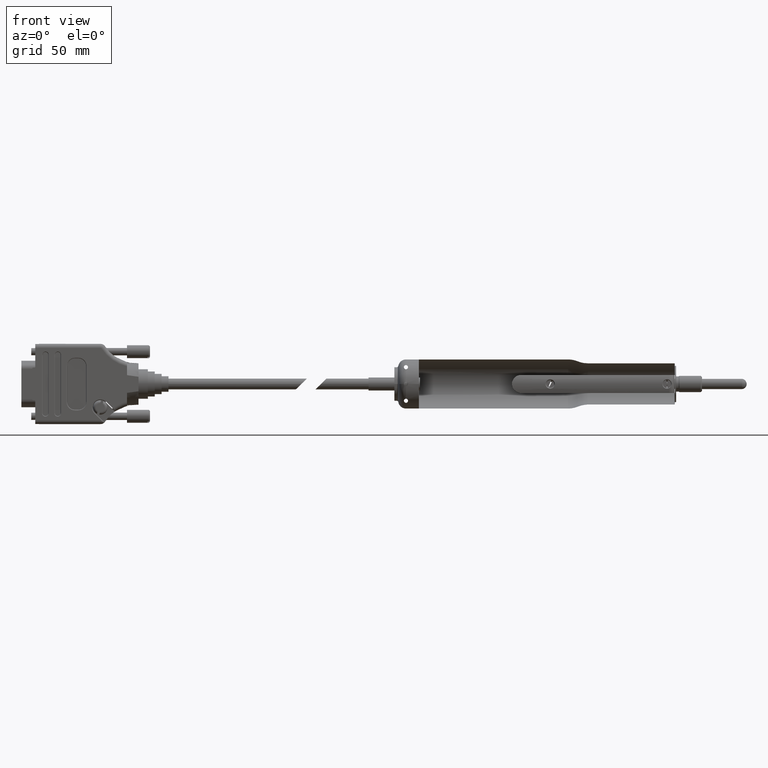
[diagram: clean part render]
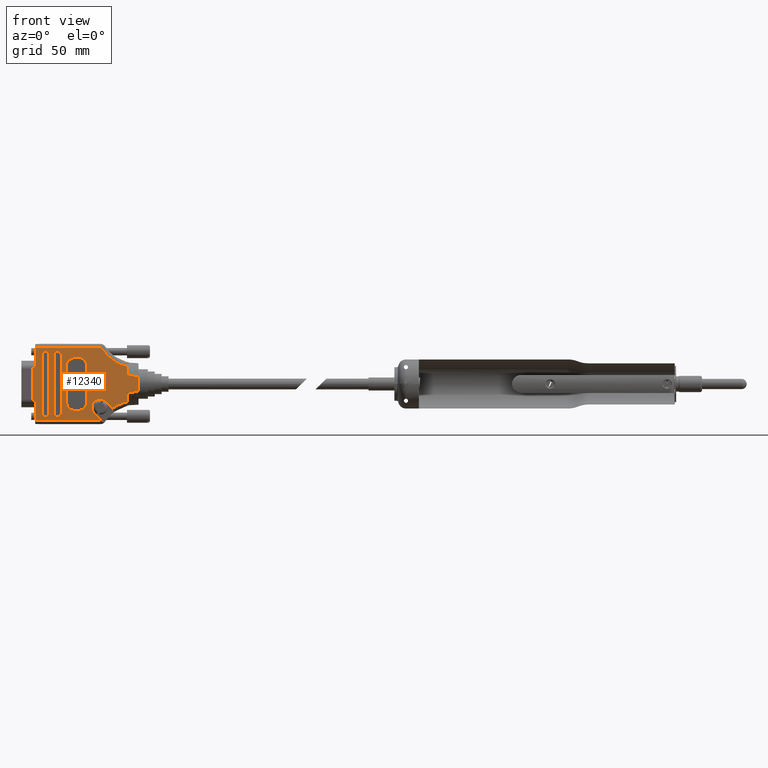
[diagram: same view with one face highlighted and labeled with its STEP entity id]
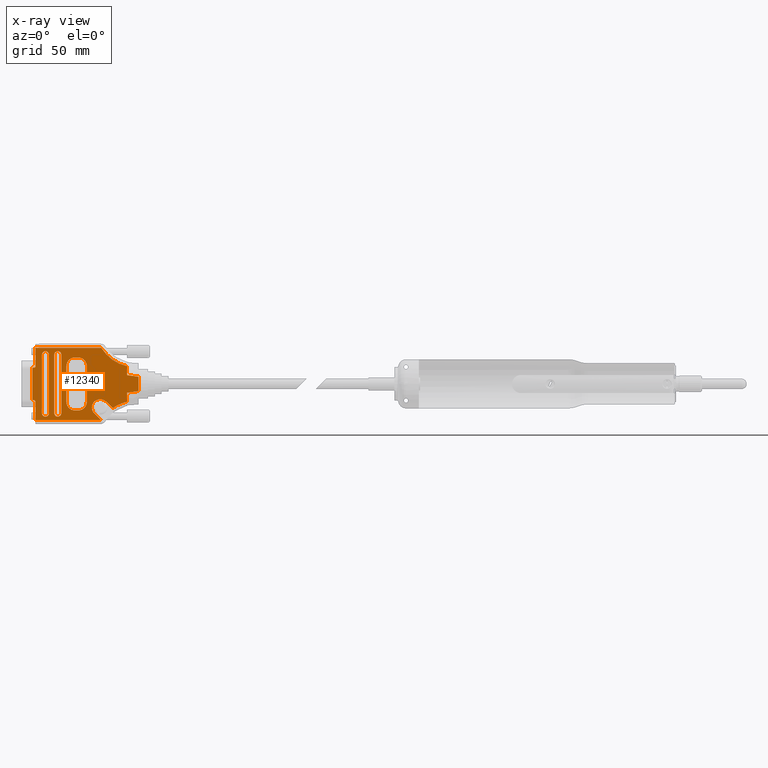
[diagram: x-ray of the same camera — body ghosted, the highlighted face saturated]
A machine part, front view. The second image highlights one B-rep face of the part: STEP entity #12340.
The next image is the same camera in x-ray: the body ghosted, the highlighted face saturated — about 0% of this face is hidden behind the body in this view.
In plain terms, the highlighted planar face has unit normal (0, -1, 0).
Its self-contained STEP definition (entity closure, byte-faithful):
#535 = CARTESIAN_POINT ( 'NONE',  ( -121.0035285347028500, -7.493000000000045600, -6.821195201369453000 ) ) ;
#555 = CARTESIAN_POINT ( 'NONE',  ( -148.7517333333333300, -7.492999999999953300, 6.350000000000052000 ) ) ;
#575 = CARTESIAN_POINT ( 'NONE',  ( -149.5391333333333500, -7.492999999999955900, 5.969000000000052700 ) ) ;
#588 = CARTESIAN_POINT ( 'NONE',  ( -148.3707333333333300, -7.493000000000096300, -13.97599999999994900 ) ) ;
#589 = CARTESIAN_POINT ( 'NONE',  ( -148.7517333333333300, -7.493000000000042100, -6.349999999999948100 ) ) ;
#596 = CARTESIAN_POINT ( 'NONE',  ( -149.5391333333333500, -7.493000000000039400, -5.968999999999947000 ) ) ;
#626 = CARTESIAN_POINT ( 'NONE',  ( -149.1581333333333200, -7.493000000000042100, -6.349999999999948100 ) ) ;
#634 = CARTESIAN_POINT ( 'NONE',  ( -149.1581333333333200, -7.492999999999953300, 6.350000000000052000 ) ) ;
#635 = CARTESIAN_POINT ( 'NONE',  ( -126.4886333333333500, -7.493000000000061600, -9.093199999999949800 ) ) ;
#1560 = DIRECTION ( 'NONE',  ( -0.0000000000000000000, -6.982966722218764100E-015, -1.000000000000000000 ) ) ;
#1567 = CARTESIAN_POINT ( 'NONE',  ( -139.6839333333333600, -7.492999999999918600, 11.29030000000005200 ) ) ;
#1568 = DIRECTION ( 'NONE',  ( -0.0000000000000000000, 1.000000000000000000, -6.982966722218764100E-015 ) ) ;
#1569 = DIRECTION ( 'NONE',  ( -1.000000000000000000, 0.0000000000000000000, 0.0000000000000000000 ) ) ;
#1570 = CARTESIAN_POINT ( 'NONE',  ( -138.3250333333333500, -7.493000000000091800, -13.46799999999994500 ) ) ;
#1574 = DIRECTION ( 'NONE',  ( 6.145889749525901300E-016, 6.982966722218764100E-015, 1.000000000000000000 ) ) ;
#1575 = CARTESIAN_POINT ( 'NONE',  ( -141.0428333333333300, -7.493000000000091800, -13.46799999999993400 ) ) ;
#1580 = CARTESIAN_POINT ( 'NONE',  ( -139.6839333333333600, -7.493000000000076700, -11.29029999999994700 ) ) ;
#1581 = DIRECTION ( 'NONE',  ( -0.0000000000000000000, 1.000000000000000000, -6.982966722218764100E-015 ) ) ;
#1582 = DIRECTION ( 'NONE',  ( -1.000000000000000000, 0.0000000000000000000, 0.0000000000000000000 ) ) ;
#1610 = DIRECTION ( 'NONE',  ( -0.0000000000000000000, -6.982966722218764100E-015, -1.000000000000000000 ) ) ;
#1618 = CARTESIAN_POINT ( 'NONE',  ( -144.4591333333333400, -7.492999999999918600, 11.29030000000005200 ) ) ;
#1619 = DIRECTION ( 'NONE',  ( -0.0000000000000000000, 1.000000000000000000, -6.982966722218764100E-015 ) ) ;
#1620 = DIRECTION ( 'NONE',  ( -1.000000000000000000, 0.0000000000000000000, 0.0000000000000000000 ) ) ;
#1621 = CARTESIAN_POINT ( 'NONE',  ( -143.1002333333333400, -7.493000000000091800, -13.46799999999994500 ) ) ;
#1631 = CARTESIAN_POINT ( 'NONE',  ( -144.4591333333333400, -7.493000000000076700, -11.29029999999994700 ) ) ;
#1632 = DIRECTION ( 'NONE',  ( -0.0000000000000000000, 1.000000000000000000, -6.982966722218764100E-015 ) ) ;
#1633 = DIRECTION ( 'NONE',  ( -1.000000000000000000, 0.0000000000000000000, 0.0000000000000000000 ) ) ;
#1714 = CARTESIAN_POINT ( 'NONE',  ( -112.8869333333333500, -7.493000000000045600, -6.850554583746556700 ) ) ;
#1715 = CARTESIAN_POINT ( 'NONE',  ( -108.4673333333333300, -7.492999999999978100, 2.805521698365671200 ) ) ;
#1725 = CARTESIAN_POINT ( 'NONE',  ( -112.8869333333333500, -7.492999999999974600, 3.410426141520523500 ) ) ;
#1989 = AXIS2_PLACEMENT_3D ( 'NONE', #18149, #18150, #18151 ) ;
#1995 = AXIS2_PLACEMENT_3D ( 'NONE', #18176, #18177, #18178 ) ;
#1996 = AXIS2_PLACEMENT_3D ( 'NONE', #18189, #18190, #18191 ) ;
#1998 = AXIS2_PLACEMENT_3D ( 'NONE', #18203, #18204, #18205 ) ;
#2001 = AXIS2_PLACEMENT_3D ( 'NONE', #18224, #18225, #18226 ) ;
#2099 = AXIS2_PLACEMENT_3D ( 'NONE', #1567, #1568, #1569 ) ;
#2102 = AXIS2_PLACEMENT_3D ( 'NONE', #1580, #1581, #1582 ) ;
#2109 = AXIS2_PLACEMENT_3D ( 'NONE', #1618, #1619, #1620 ) ;
#2112 = AXIS2_PLACEMENT_3D ( 'NONE', #1631, #1632, #1633 ) ;
#2357 = AXIS2_PLACEMENT_3D ( 'NONE', #15646, #15647, #15648 ) ;
#2405 = AXIS2_PLACEMENT_3D ( 'NONE', #15962, #15963, #15964 ) ;
#2407 = AXIS2_PLACEMENT_3D ( 'NONE', #15970, #15971, #15972 ) ;
#2415 = AXIS2_PLACEMENT_3D ( 'NONE', #16077, #16078, #16079 ) ;
#2422 = AXIS2_PLACEMENT_3D ( 'NONE', #16165, #16166, #16167 ) ;
#2432 = AXIS2_PLACEMENT_3D ( 'NONE', #16225, #16226, #16227 ) ;
#2436 = AXIS2_PLACEMENT_3D ( 'NONE', #16240, #16241, #16242 ) ;
#2439 = AXIS2_PLACEMENT_3D ( 'NONE', #16251, #16252, #16253 ) ;
#2464 = VERTEX_POINT ( 'NONE', #535 ) ;
#3829 = VECTOR ( 'NONE', #15641, 1000.000000000000000 ) ;
#3831 = CIRCLE ( 'NONE', #2357, 15.79880000000000200 ) ;
#3832 = VECTOR ( 'NONE', #15643, 1000.000000000000100 ) ;
#3835 = LINE ( 'NONE', #15640, #3829 ) ;
#3838 = LINE ( 'NONE', #15642, #3832 ) ;
#3963 = CIRCLE ( 'NONE', #2405, 15.79880000000000200 ) ;
#3964 = CIRCLE ( 'NONE', #2407, 0.5079999999999945700 ) ;
#3968 = LINE ( 'NONE', #15968, #3970 ) ;
#3970 = VECTOR ( 'NONE', #15969, 1000.000000000000000 ) ;
#3971 = LINE ( 'NONE', #15978, #3974 ) ;
#3974 = VECTOR ( 'NONE', #15979, 1000.000000000000000 ) ;
#4041 = LINE ( 'NONE', #16063, #4052 ) ;
#4052 = VECTOR ( 'NONE', #16054, 1000.000000000000000 ) ;
#4053 = LINE ( 'NONE', #16073, #4058 ) ;
#4056 = CIRCLE ( 'NONE', #2422, 0.5079999999999945700 ) ;
#4057 = CIRCLE ( 'NONE', #2415, 3.213100000000010500 ) ;
#4058 = VECTOR ( 'NONE', #16067, 1000.000000000000100 ) ;
#4118 = CIRCLE ( 'NONE', #2432, 3.301999999999999600 ) ;
#4122 = LINE ( 'NONE', #16232, #4126 ) ;
#4124 = CIRCLE ( 'NONE', #2436, 3.301999999999999600 ) ;
#4126 = VECTOR ( 'NONE', #16228, 1000.000000000000000 ) ;
#4127 = LINE ( 'NONE', #16243, #4131 ) ;
#4129 = CIRCLE ( 'NONE', #2439, 3.301999999999999600 ) ;
#4131 = VECTOR ( 'NONE', #16239, 1000.000000000000000 ) ;
#4132 = LINE ( 'NONE', #16254, #4136 ) ;
#4134 = CIRCLE ( 'NONE', #21851, 3.301999999999999600 ) ;
#4136 = VECTOR ( 'NONE', #16250, 1000.000000000000000 ) ;
#4138 = LINE ( 'NONE', #16259, #4140 ) ;
#4140 = VECTOR ( 'NONE', #16258, 1000.000000000000000 ) ;
#4770 = FACE_BOUND ( 'NONE', #5193, .T. ) ;
#4771 = FACE_BOUND ( 'NONE', #5331, .T. ) ;
#4773 = FACE_OUTER_BOUND ( 'NONE', #5505, .T. ) ;
#4774 = FACE_BOUND ( 'NONE', #5324, .T. ) ;
#5193 = EDGE_LOOP ( 'NONE', ( #17293, #16970, #16990, #17022 ) ) ;
#5324 = EDGE_LOOP ( 'NONE', ( #17317, #17015, #16966, #17130 ) ) ;
#5331 = EDGE_LOOP ( 'NONE', ( #16982, #17281, #17208, #17013, #17205, #17209, #17074, #17049 ) ) ;
#5505 = EDGE_LOOP ( 'NONE', ( #17020, #16973, #16971, #17176, #17009, #17193, #17017, #17265, #17069, #17211, #17238, #17271, #16993, #16992, #16967, #16987, #17153, #16974, #17255, #16994, #17264, #17155, #6130, #6162 ) ) ;
#5872 = VERTEX_POINT ( 'NONE', #555 ) ;
#5873 = VERTEX_POINT ( 'NONE', #589 ) ;
#5874 = VERTEX_POINT ( 'NONE', #575 ) ;
#5875 = VERTEX_POINT ( 'NONE', #588 ) ;
#5879 = VERTEX_POINT ( 'NONE', #596 ) ;
#6130 = ORIENTED_EDGE ( 'NONE', *, *, #14265, .T. ) ;
#6162 = ORIENTED_EDGE ( 'NONE', *, *, #25291, .T. ) ;
#6443 = CARTESIAN_POINT ( 'NONE',  ( -148.3707333333333300, -7.493000000000044700, -6.730999999999949200 ) ) ;
#7568 = B_SPLINE_CURVE_WITH_KNOTS ( 'NONE', 3,
 ( #18276, #18256, #18271, #18277 ),
 .UNSPECIFIED., .F., .F.,
 ( 4, 4 ),
 ( 0.005929499921955137600, 0.01038899610469911500 ),
 .UNSPECIFIED. ) ;
#7571 = B_SPLINE_CURVE_WITH_KNOTS ( 'NONE', 3,
 ( #18323, #18315, #18316, #18325 ),
 .UNSPECIFIED., .F., .F.,
 ( 4, 4 ),
 ( 0.009291819051618252800, 0.01375203743031553800 ),
 .UNSPECIFIED. ) ;
#8030 = VERTEX_POINT ( 'NONE', #626 ) ;
#8031 = VERTEX_POINT ( 'NONE', #634 ) ;
#8036 = VERTEX_POINT ( 'NONE', #635 ) ;
#9202 = AXIS2_PLACEMENT_3D ( 'NONE', #21669, #21670, #21671 ) ;
#11628 = VERTEX_POINT ( 'NONE', #20635 ) ;
#12228 = VERTEX_POINT ( 'NONE', #6443 ) ;
#12340 = ADVANCED_FACE ( 'NONE', ( #4770, #4774, #4771, #4773 ), #21661, .T. ) ;
#14259 = EDGE_CURVE ( 'NONE', #8036, #2464, #28294, .T. ) ;
#14265 = EDGE_CURVE ( 'NONE', #12228, #5875, #28302, .T. ) ;
#14268 = EDGE_CURVE ( 'NONE', #5873, #12228, #28309, .T. ) ;
#14270 = EDGE_CURVE ( 'NONE', #5873, #8030, #28304, .T. ) ;
#14275 = EDGE_CURVE ( 'NONE', #5879, #8030, #28321, .T. ) ;
#14278 = EDGE_CURVE ( 'NONE', #5879, #5874, #28324, .T. ) ;
#14281 = EDGE_CURVE ( 'NONE', #8031, #5874, #28331, .T. ) ;
#14284 = EDGE_CURVE ( 'NONE', #5872, #8031, #28334, .T. ) ;
#14290 = EDGE_CURVE ( 'NONE', #20207, #5872, #28347, .T. ) ;
#14298 = EDGE_CURVE ( 'NONE', #24380, #17636, #28356, .T. ) ;
#14304 = EDGE_CURVE ( 'NONE', #20205, #24380, #7568, .T. ) ;
#14309 = EDGE_CURVE ( 'NONE', #20205, #17637, #28367, .T. ) ;
#14316 = EDGE_CURVE ( 'NONE', #19315, #17637, #7571, .T. ) ;
#14322 = EDGE_CURVE ( 'NONE', #24518, #19315, #28380, .T. ) ;
#14921 = EDGE_CURVE ( 'NONE', #24712, #24716, #28751, .T. ) ;
#14924 = EDGE_CURVE ( 'NONE', #24716, #24720, #28752, .T. ) ;
#14926 = EDGE_CURVE ( 'NONE', #24720, #24724, #28753, .T. ) ;
#14927 = EDGE_CURVE ( 'NONE', #24724, #24712, #28757, .T. ) ;
#14948 = EDGE_CURVE ( 'NONE', #24736, #24740, #28781, .T. ) ;
#14953 = EDGE_CURVE ( 'NONE', #24740, #24744, #28782, .T. ) ;
#14956 = EDGE_CURVE ( 'NONE', #24744, #24748, #28783, .T. ) ;
#15447 = CARTESIAN_POINT ( 'NONE',  ( -118.4742599129533900, -7.493000000000063400, -9.350463823118900600 ) ) ;
#15457 = CARTESIAN_POINT ( 'NONE',  ( -123.0914605572637700, -7.493000000000096300, -13.97599999999994900 ) ) ;
#15458 = CARTESIAN_POINT ( 'NONE',  ( -122.9553240414413600, -7.493000000000095400, -13.95741888915291900 ) ) ;
#15463 = CARTESIAN_POINT ( 'NONE',  ( -125.5475381319638500, -7.493000000000076700, -11.36520479863045100 ) ) ;
#15489 = CARTESIAN_POINT ( 'NONE',  ( -128.4571333333333300, -7.492999999999949700, 6.934200000000027200 ) ) ;
#15490 = CARTESIAN_POINT ( 'NONE',  ( -131.7591333333333500, -7.493000000000068700, -10.23619999999995000 ) ) ;
#15491 = CARTESIAN_POINT ( 'NONE',  ( -136.3311333333333600, -7.493000000000046500, -6.934199999999926900 ) ) ;
#15492 = CARTESIAN_POINT ( 'NONE',  ( -133.0291333333333300, -7.493000000000068700, -10.23619999999995000 ) ) ;
#15493 = CARTESIAN_POINT ( 'NONE',  ( -128.4571333333333300, -7.493000000000046500, -6.934199999999926900 ) ) ;
#15494 = CARTESIAN_POINT ( 'NONE',  ( -131.7591333333333500, -7.492999999999926600, 10.23620000000005200 ) ) ;
#15496 = CARTESIAN_POINT ( 'NONE',  ( -136.3311333333333600, -7.492999999999949700, 6.934200000000027200 ) ) ;
#15497 = CARTESIAN_POINT ( 'NONE',  ( -133.0291333333333300, -7.492999999999926600, 10.23620000000005200 ) ) ;
#15505 = CARTESIAN_POINT ( 'NONE',  ( -141.0428333333333300, -7.492999999999918600, 11.29030000000005200 ) ) ;
#15507 = CARTESIAN_POINT ( 'NONE',  ( -138.3250333333333500, -7.492999999999918600, 11.29030000000005200 ) ) ;
#15509 = CARTESIAN_POINT ( 'NONE',  ( -138.3250333333333500, -7.493000000000076700, -11.29029999999994700 ) ) ;
#15511 = CARTESIAN_POINT ( 'NONE',  ( -141.0428333333333300, -7.493000000000076700, -11.29029999999994700 ) ) ;
#15517 = CARTESIAN_POINT ( 'NONE',  ( -145.8180333333333200, -7.492999999999918600, 11.29030000000005200 ) ) ;
#15520 = CARTESIAN_POINT ( 'NONE',  ( -143.1002333333333400, -7.492999999999918600, 11.29030000000005200 ) ) ;
#15522 = CARTESIAN_POINT ( 'NONE',  ( -143.1002333333333400, -7.493000000000076700, -11.29029999999994700 ) ) ;
#15524 = CARTESIAN_POINT ( 'NONE',  ( -145.8180333333333500, -7.493000000000076700, -11.29029999999994700 ) ) ;
#15640 = CARTESIAN_POINT ( 'NONE',  ( -145.8180333333333500, -7.493000000000091800, -13.46799999999993100 ) ) ;
#15641 = DIRECTION ( 'NONE',  ( 6.145889749525901300E-016, 6.982966722218764100E-015, 1.000000000000000000 ) ) ;
#15642 = CARTESIAN_POINT ( 'NONE',  ( -118.5035376176227300, -7.493000000000063400, -9.321186118449571000 ) ) ;
#15643 = DIRECTION ( 'NONE',  ( 0.7071067811865483500, -4.937703122080880900E-015, -0.7071067811865465700 ) ) ;
#15646 = CARTESIAN_POINT ( 'NONE',  ( -109.3504522141959800, -7.493000000000153100, -22.24845647764057700 ) ) ;
#15647 = DIRECTION ( 'NONE',  ( -0.0000000000000000000, 1.000000000000000000, -6.982966722218764100E-015 ) ) ;
#15648 = DIRECTION ( 'NONE',  ( -1.000000000000000000, 0.0000000000000000000, -8.784077150045861700E-016 ) ) ;
#15962 = CARTESIAN_POINT ( 'NONE',  ( -109.3504522141959800, -7.492999999999842200, 22.24845647764068000 ) ) ;
#15963 = DIRECTION ( 'NONE',  ( -0.0000000000000000000, 1.000000000000000000, -6.982966722218764100E-015 ) ) ;
#15964 = DIRECTION ( 'NONE',  ( -1.000000000000000000, 0.0000000000000000000, 1.756815430009172300E-015 ) ) ;
#15968 = CARTESIAN_POINT ( 'NONE',  ( -148.3707333333333300, -7.492999999999900000, 13.97600000000005100 ) ) ;
#15969 = DIRECTION ( 'NONE',  ( -1.000000000000000000, 0.0000000000000000000, 0.0000000000000000000 ) ) ;
#15970 = CARTESIAN_POINT ( 'NONE',  ( -123.0914605572637700, -7.492999999999904400, 13.46800000000005000 ) ) ;
#15971 = DIRECTION ( 'NONE',  ( 0.0000000000000000000, -1.000000000000000000, 6.982966722218764100E-015 ) ) ;
#15972 = DIRECTION ( 'NONE',  ( -1.000000000000000000, 0.0000000000000000000, 0.0000000000000000000 ) ) ;
#15978 = CARTESIAN_POINT ( 'NONE',  ( -148.3707333333333300, -7.493000000000106000, -15.49999999999994800 ) ) ;
#15979 = DIRECTION ( 'NONE',  ( 0.0000000000000000000, -6.982966722218764100E-015, -1.000000000000000000 ) ) ;
#16054 = DIRECTION ( 'NONE',  ( 1.000000000000000000, -0.0000000000000000000, 0.0000000000000000000 ) ) ;
#16063 = CARTESIAN_POINT ( 'NONE',  ( -123.0914605572637700, -7.493000000000096300, -13.97599999999994900 ) ) ;
#16067 = DIRECTION ( 'NONE',  ( -0.7071067811865489100, 4.937703122080876200E-015, 0.7071067811865460200 ) ) ;
#16073 = CARTESIAN_POINT ( 'NONE',  ( -125.5475381319638500, -7.493000000000076700, -11.36520479863044900 ) ) ;
#16077 = CARTESIAN_POINT ( 'NONE',  ( -123.2755333333333400, -7.493000000000061600, -9.093199999999949800 ) ) ;
#16078 = DIRECTION ( 'NONE',  ( -0.0000000000000000000, 1.000000000000000000, -6.982966722218764100E-015 ) ) ;
#16079 = DIRECTION ( 'NONE',  ( -1.000000000000000000, 0.0000000000000000000, -1.511694541948599100E-014 ) ) ;
#16165 = CARTESIAN_POINT ( 'NONE',  ( -123.0914605572637700, -7.493000000000091800, -13.46799999999994500 ) ) ;
#16166 = DIRECTION ( 'NONE',  ( 0.0000000000000000000, -1.000000000000000000, 6.982966722218764100E-015 ) ) ;
#16167 = DIRECTION ( 'NONE',  ( -1.000000000000000000, 0.0000000000000000000, 0.0000000000000000000 ) ) ;
#16225 = CARTESIAN_POINT ( 'NONE',  ( -131.7591333333333200, -7.493000000000046500, -6.934199999999949100 ) ) ;
#16226 = DIRECTION ( 'NONE',  ( -0.0000000000000000000, 1.000000000000000000, -6.982966722218764100E-015 ) ) ;
#16227 = DIRECTION ( 'NONE',  ( -1.000000000000000000, 0.0000000000000000000, 7.880330750954606000E-016 ) ) ;
#16228 = DIRECTION ( 'NONE',  ( -1.000000000000000000, 0.0000000000000000000, -0.0000000000000000000 ) ) ;
#16232 = CARTESIAN_POINT ( 'NONE',  ( -133.0291333333333300, -7.493000000000068700, -10.23619999999995000 ) ) ;
#16239 = DIRECTION ( 'NONE',  ( -2.501692301890359400E-016, 6.982966722218764100E-015, 1.000000000000000000 ) ) ;
#16240 = CARTESIAN_POINT ( 'NONE',  ( -133.0291333333333300, -7.493000000000046500, -6.934199999999949100 ) ) ;
#16241 = DIRECTION ( 'NONE',  ( -0.0000000000000000000, 1.000000000000000000, -6.982966722218764100E-015 ) ) ;
#16242 = DIRECTION ( 'NONE',  ( -1.000000000000000000, 0.0000000000000000000, 0.0000000000000000000 ) ) ;
#16243 = CARTESIAN_POINT ( 'NONE',  ( -136.3311333333333600, -7.492999999999949700, 6.934200000000027200 ) ) ;
#16250 = DIRECTION ( 'NONE',  ( 1.000000000000000000, -0.0000000000000000000, -0.0000000000000000000 ) ) ;
#16251 = CARTESIAN_POINT ( 'NONE',  ( -133.0291333333333600, -7.492999999999949700, 6.934200000000051200 ) ) ;
#16252 = DIRECTION ( 'NONE',  ( -0.0000000000000000000, 1.000000000000000000, -6.982966722218764100E-015 ) ) ;
#16253 = DIRECTION ( 'NONE',  ( -1.000000000000000000, 0.0000000000000000000, 0.0000000000000000000 ) ) ;
#16254 = CARTESIAN_POINT ( 'NONE',  ( -131.7591333333333500, -7.492999999999926600, 10.23620000000005200 ) ) ;
#16258 = DIRECTION ( 'NONE',  ( -0.0000000000000000000, -6.982966722218764100E-015, -1.000000000000000000 ) ) ;
#16259 = CARTESIAN_POINT ( 'NONE',  ( -128.4571333333333300, -7.493000000000046500, -6.934199999999928600 ) ) ;
#16265 = CARTESIAN_POINT ( 'NONE',  ( -131.7591333333333200, -7.492999999999949700, 6.934200000000050300 ) ) ;
#16266 = DIRECTION ( 'NONE',  ( -0.0000000000000000000, 1.000000000000000000, -6.982966722218764100E-015 ) ) ;
#16267 = DIRECTION ( 'NONE',  ( -1.000000000000000000, 0.0000000000000000000, -7.880330750954606000E-016 ) ) ;
#16966 = ORIENTED_EDGE ( 'NONE', *, *, #14924, .T. ) ;
#16967 = ORIENTED_EDGE ( 'NONE', *, *, #25250, .T. ) ;
#16970 = ORIENTED_EDGE ( 'NONE', *, *, #14948, .T. ) ;
#16971 = ORIENTED_EDGE ( 'NONE', *, *, #25296, .T. ) ;
#16973 = ORIENTED_EDGE ( 'NONE', *, *, #25295, .T. ) ;
#16974 = ORIENTED_EDGE ( 'NONE', *, *, #14281, .T. ) ;
#16982 = ORIENTED_EDGE ( 'NONE', *, *, #25354, .T. ) ;
#16987 = ORIENTED_EDGE ( 'NONE', *, *, #14290, .T. ) ;
#16990 = ORIENTED_EDGE ( 'NONE', *, *, #14953, .T. ) ;
#16992 = ORIENTED_EDGE ( 'NONE', *, *, #25248, .T. ) ;
#16993 = ORIENTED_EDGE ( 'NONE', *, *, #25246, .T. ) ;
#16994 = ORIENTED_EDGE ( 'NONE', *, *, #14275, .T. ) ;
#17009 = ORIENTED_EDGE ( 'NONE', *, *, #25141, .T. ) ;
#17013 = ORIENTED_EDGE ( 'NONE', *, *, #25345, .T. ) ;
#17015 = ORIENTED_EDGE ( 'NONE', *, *, #14921, .T. ) ;
#17017 = ORIENTED_EDGE ( 'NONE', *, *, #14298, .F. ) ;
#17020 = ORIENTED_EDGE ( 'NONE', *, *, #25314, .T. ) ;
#17022 = ORIENTED_EDGE ( 'NONE', *, *, #14956, .T. ) ;
#17049 = ORIENTED_EDGE ( 'NONE', *, *, #25353, .T. ) ;
#17069 = ORIENTED_EDGE ( 'NONE', *, *, #14309, .T. ) ;
#17074 = ORIENTED_EDGE ( 'NONE', *, *, #25351, .T. ) ;
#17130 = ORIENTED_EDGE ( 'NONE', *, *, #14926, .T. ) ;
#17153 = ORIENTED_EDGE ( 'NONE', *, *, #14284, .T. ) ;
#17155 = ORIENTED_EDGE ( 'NONE', *, *, #14268, .T. ) ;
#17176 = ORIENTED_EDGE ( 'NONE', *, *, #14259, .T. ) ;
#17193 = ORIENTED_EDGE ( 'NONE', *, *, #25142, .T. ) ;
#17205 = ORIENTED_EDGE ( 'NONE', *, *, #25347, .T. ) ;
#17208 = ORIENTED_EDGE ( 'NONE', *, *, #25343, .T. ) ;
#17209 = ORIENTED_EDGE ( 'NONE', *, *, #25349, .T. ) ;
#17211 = ORIENTED_EDGE ( 'NONE', *, *, #14316, .F. ) ;
#17238 = ORIENTED_EDGE ( 'NONE', *, *, #14322, .F. ) ;
#17255 = ORIENTED_EDGE ( 'NONE', *, *, #14278, .F. ) ;
#17264 = ORIENTED_EDGE ( 'NONE', *, *, #14270, .F. ) ;
#17265 = ORIENTED_EDGE ( 'NONE', *, *, #14304, .F. ) ;
#17271 = ORIENTED_EDGE ( 'NONE', *, *, #25244, .T. ) ;
#17281 = ORIENTED_EDGE ( 'NONE', *, *, #25340, .T. ) ;
#17293 = ORIENTED_EDGE ( 'NONE', *, *, #25140, .T. ) ;
#17317 = ORIENTED_EDGE ( 'NONE', *, *, #14927, .T. ) ;
#17636 = VERTEX_POINT ( 'NONE', #1714 ) ;
#17637 = VERTEX_POINT ( 'NONE', #1715 ) ;
#18149 = CARTESIAN_POINT ( 'NONE',  ( -123.2755333333333400, -7.493000000000061600, -9.093199999999949800 ) ) ;
#18150 = DIRECTION ( 'NONE',  ( -0.0000000000000000000, 1.000000000000000000, -6.982966722218764100E-015 ) ) ;
#18151 = DIRECTION ( 'NONE',  ( -1.000000000000000000, 0.0000000000000000000, 0.0000000000000000000 ) ) ;
#18162 = DIRECTION ( 'NONE',  ( 0.0000000000000000000, -6.982966722218764100E-015, -1.000000000000000000 ) ) ;
#18163 = CARTESIAN_POINT ( 'NONE',  ( -148.3707333333333300, -7.493000000000106000, -15.49999999999994800 ) ) ;
#18175 = CARTESIAN_POINT ( 'NONE',  ( -148.3707333333333300, -7.493000000000042100, -6.349999999999948100 ) ) ;
#18176 = CARTESIAN_POINT ( 'NONE',  ( -148.7517333333333300, -7.493000000000044700, -6.730999999999948400 ) ) ;
#18177 = DIRECTION ( 'NONE',  ( -0.0000000000000000000, 1.000000000000000000, -6.982966722218764100E-015 ) ) ;
#18178 = DIRECTION ( 'NONE',  ( -1.000000000000000000, 0.0000000000000000000, 0.0000000000000000000 ) ) ;
#18180 = DIRECTION ( 'NONE',  ( -1.000000000000000000, 0.0000000000000000000, 0.0000000000000000000 ) ) ;
#18189 = CARTESIAN_POINT ( 'NONE',  ( -149.1581333333333200, -7.493000000000039400, -5.968999999999947000 ) ) ;
#18190 = DIRECTION ( 'NONE',  ( 0.0000000000000000000, -1.000000000000000000, 6.982966722218764100E-015 ) ) ;
#18191 = DIRECTION ( 'NONE',  ( -1.000000000000000000, 0.0000000000000000000, 0.0000000000000000000 ) ) ;
#18192 = DIRECTION ( 'NONE',  ( 0.0000000000000000000, 6.982966722218764100E-015, 1.000000000000000000 ) ) ;
#18195 = CARTESIAN_POINT ( 'NONE',  ( -149.5391333333333500, -7.493000000000042100, -6.349999999999948100 ) ) ;
#18203 = CARTESIAN_POINT ( 'NONE',  ( -149.1581333333333200, -7.492999999999955900, 5.969000000000052700 ) ) ;
#18204 = DIRECTION ( 'NONE',  ( 0.0000000000000000000, -1.000000000000000000, 6.982966722218764100E-015 ) ) ;
#18205 = DIRECTION ( 'NONE',  ( -1.000000000000000000, 0.0000000000000000000, 0.0000000000000000000 ) ) ;
#18206 = DIRECTION ( 'NONE',  ( -1.000000000000000000, 0.0000000000000000000, 0.0000000000000000000 ) ) ;
#18207 = CARTESIAN_POINT ( 'NONE',  ( -148.3707333333333300, -7.492999999999953300, 6.350000000000052000 ) ) ;
#18224 = CARTESIAN_POINT ( 'NONE',  ( -148.7517333333333300, -7.492999999999951500, 6.731000000000053200 ) ) ;
#18225 = DIRECTION ( 'NONE',  ( -0.0000000000000000000, 1.000000000000000000, -6.982966722218764100E-015 ) ) ;
#18226 = DIRECTION ( 'NONE',  ( -1.000000000000000000, 0.0000000000000000000, 0.0000000000000000000 ) ) ;
#18253 = CARTESIAN_POINT ( 'NONE',  ( -112.8869333333333500, -7.493000000000091800, -13.46799999999994500 ) ) ;
#18255 = DIRECTION ( 'NONE',  ( 0.0000000000000000000, -6.982966722218764100E-015, -1.000000000000000000 ) ) ;
#18256 = CARTESIAN_POINT ( 'NONE',  ( -109.9380416134310100, -7.493000000000019000, -3.025334475568115500 ) ) ;
#18271 = CARTESIAN_POINT ( 'NONE',  ( -111.4119144322817000, -7.493000000000019900, -3.223821329420853300 ) ) ;
#18276 = CARTESIAN_POINT ( 'NONE',  ( -108.4673333333333300, -7.493000000000018100, -2.805521698365566400 ) ) ;
#18277 = CARTESIAN_POINT ( 'NONE',  ( -112.8869333333333500, -7.493000000000021600, -3.410426141520418700 ) ) ;
#18302 = DIRECTION ( 'NONE',  ( 0.0000000000000000000, 6.982966722218764100E-015, 1.000000000000000000 ) ) ;
#18305 = CARTESIAN_POINT ( 'NONE',  ( -108.4673333333333300, -7.493000000000053600, -8.000999999999947900 ) ) ;
#18315 = CARTESIAN_POINT ( 'NONE',  ( -111.4119144322816900, -7.492999999999975500, 3.223821329420953200 ) ) ;
#18316 = CARTESIAN_POINT ( 'NONE',  ( -109.9380416134310100, -7.492999999999976300, 3.025334475568222500 ) ) ;
#18323 = CARTESIAN_POINT ( 'NONE',  ( -112.8869333333333500, -7.492999999999974600, 3.410426141520523500 ) ) ;
#18325 = CARTESIAN_POINT ( 'NONE',  ( -108.4673333333333300, -7.492999999999978100, 2.805521698365671200 ) ) ;
#18349 = CARTESIAN_POINT ( 'NONE',  ( -112.8869333333333500, -7.493000000000091800, -13.46799999999994500 ) ) ;
#18350 = DIRECTION ( 'NONE',  ( 0.0000000000000000000, -6.982966722218764100E-015, -1.000000000000000000 ) ) ;
#19315 = VERTEX_POINT ( 'NONE', #1725 ) ;
#20205 = VERTEX_POINT ( 'NONE', #26182 ) ;
#20207 = VERTEX_POINT ( 'NONE', #26187 ) ;
#20635 = CARTESIAN_POINT ( 'NONE',  ( -148.3707333333333300, -7.492999999999900000, 13.97600000000005100 ) ) ;
#21661 = PLANE ( 'NONE',  #9202 ) ;
#21669 = CARTESIAN_POINT ( 'NONE',  ( -123.0914605572637700, -7.493000000000091800, -13.46799999999994500 ) ) ;
#21670 = DIRECTION ( 'NONE',  ( 0.0000000000000000000, -1.000000000000000000, 6.982966722218764100E-015 ) ) ;
#21671 = DIRECTION ( 'NONE',  ( -1.000000000000000000, 0.0000000000000000000, 0.0000000000000000000 ) ) ;
#21851 = AXIS2_PLACEMENT_3D ( 'NONE', #16265, #16266, #16267 ) ;
#24380 = VERTEX_POINT ( 'NONE', #26436 ) ;
#24518 = VERTEX_POINT ( 'NONE', #26507 ) ;
#24548 = VERTEX_POINT ( 'NONE', #26522 ) ;
#24550 = VERTEX_POINT ( 'NONE', #26523 ) ;
#24602 = VERTEX_POINT ( 'NONE', #15447 ) ;
#24620 = VERTEX_POINT ( 'NONE', #15458 ) ;
#24626 = VERTEX_POINT ( 'NONE', #15457 ) ;
#24632 = VERTEX_POINT ( 'NONE', #15463 ) ;
#24680 = VERTEX_POINT ( 'NONE', #15489 ) ;
#24682 = VERTEX_POINT ( 'NONE', #15490 ) ;
#24684 = VERTEX_POINT ( 'NONE', #15491 ) ;
#24686 = VERTEX_POINT ( 'NONE', #15492 ) ;
#24688 = VERTEX_POINT ( 'NONE', #15493 ) ;
#24690 = VERTEX_POINT ( 'NONE', #15494 ) ;
#24694 = VERTEX_POINT ( 'NONE', #15496 ) ;
#24696 = VERTEX_POINT ( 'NONE', #15497 ) ;
#24712 = VERTEX_POINT ( 'NONE', #15505 ) ;
#24716 = VERTEX_POINT ( 'NONE', #15507 ) ;
#24720 = VERTEX_POINT ( 'NONE', #15509 ) ;
#24724 = VERTEX_POINT ( 'NONE', #15511 ) ;
#24736 = VERTEX_POINT ( 'NONE', #15517 ) ;
#24740 = VERTEX_POINT ( 'NONE', #15520 ) ;
#24744 = VERTEX_POINT ( 'NONE', #15522 ) ;
#24748 = VERTEX_POINT ( 'NONE', #15524 ) ;
#25140 = EDGE_CURVE ( 'NONE', #24748, #24736, #3835, .T. ) ;
#25141 = EDGE_CURVE ( 'NONE', #2464, #24602, #3838, .T. ) ;
#25142 = EDGE_CURVE ( 'NONE', #24602, #17636, #3831, .T. ) ;
#25244 = EDGE_CURVE ( 'NONE', #24518, #24550, #3963, .T. ) ;
#25246 = EDGE_CURVE ( 'NONE', #24550, #24548, #3964, .T. ) ;
#25248 = EDGE_CURVE ( 'NONE', #24548, #11628, #3968, .T. ) ;
#25250 = EDGE_CURVE ( 'NONE', #11628, #20207, #3971, .T. ) ;
#25291 = EDGE_CURVE ( 'NONE', #5875, #24626, #4041, .T. ) ;
#25295 = EDGE_CURVE ( 'NONE', #24620, #24632, #4053, .T. ) ;
#25296 = EDGE_CURVE ( 'NONE', #24632, #8036, #4057, .T. ) ;
#25314 = EDGE_CURVE ( 'NONE', #24626, #24620, #4056, .T. ) ;
#25340 = EDGE_CURVE ( 'NONE', #24688, #24682, #4118, .T. ) ;
#25343 = EDGE_CURVE ( 'NONE', #24682, #24686, #4122, .T. ) ;
#25345 = EDGE_CURVE ( 'NONE', #24686, #24684, #4124, .T. ) ;
#25347 = EDGE_CURVE ( 'NONE', #24684, #24694, #4127, .T. ) ;
#25349 = EDGE_CURVE ( 'NONE', #24694, #24696, #4129, .T. ) ;
#25351 = EDGE_CURVE ( 'NONE', #24696, #24690, #4132, .T. ) ;
#25353 = EDGE_CURVE ( 'NONE', #24690, #24680, #4134, .T. ) ;
#25354 = EDGE_CURVE ( 'NONE', #24680, #24688, #4138, .T. ) ;
#26182 = CARTESIAN_POINT ( 'NONE',  ( -108.4673333333333300, -7.493000000000018100, -2.805521698365566400 ) ) ;
#26187 = CARTESIAN_POINT ( 'NONE',  ( -148.3707333333333300, -7.492999999999951500, 6.731000000000053200 ) ) ;
#26436 = CARTESIAN_POINT ( 'NONE',  ( -112.8869333333333500, -7.493000000000021600, -3.410426141520418700 ) ) ;
#26507 = CARTESIAN_POINT ( 'NONE',  ( -112.8869333333333500, -7.492999999999950600, 6.850554583746660600 ) ) ;
#26522 = CARTESIAN_POINT ( 'NONE',  ( -123.0914605572637700, -7.492999999999900000, 13.97600000000005100 ) ) ;
#26523 = CARTESIAN_POINT ( 'NONE',  ( -122.6633917615295700, -7.492999999999901700, 13.74153446970848000 ) ) ;
#28294 = CIRCLE ( 'NONE', #1989, 3.213100000000010500 ) ;
#28302 = LINE ( 'NONE', #18163, #28306 ) ;
#28304 = LINE ( 'NONE', #18175, #28314 ) ;
#28306 = VECTOR ( 'NONE', #18162, 1000.000000000000000 ) ;
#28309 = CIRCLE ( 'NONE', #1995, 0.3809999999999924600 ) ;
#28314 = VECTOR ( 'NONE', #18180, 1000.000000000000000 ) ;
#28321 = CIRCLE ( 'NONE', #1996, 0.3809999999999924600 ) ;
#28324 = LINE ( 'NONE', #18195, #28328 ) ;
#28328 = VECTOR ( 'NONE', #18192, 1000.000000000000000 ) ;
#28331 = CIRCLE ( 'NONE', #1998, 0.3809999999999924600 ) ;
#28334 = LINE ( 'NONE', #18207, #28338 ) ;
#28338 = VECTOR ( 'NONE', #18206, 1000.000000000000000 ) ;
#28347 = CIRCLE ( 'NONE', #2001, 0.3809999999999924600 ) ;
#28356 = LINE ( 'NONE', #18253, #28359 ) ;
#28359 = VECTOR ( 'NONE', #18255, 1000.000000000000000 ) ;
#28367 = LINE ( 'NONE', #18305, #28370 ) ;
#28370 = VECTOR ( 'NONE', #18302, 1000.000000000000000 ) ;
#28380 = LINE ( 'NONE', #18349, #28382 ) ;
#28382 = VECTOR ( 'NONE', #18350, 1000.000000000000000 ) ;
#28751 = CIRCLE ( 'NONE', #2099, 1.358899999999996200 ) ;
#28752 = LINE ( 'NONE', #1570, #28755 ) ;
#28753 = CIRCLE ( 'NONE', #2102, 1.358899999999996200 ) ;
#28755 = VECTOR ( 'NONE', #1560, 1000.000000000000000 ) ;
#28757 = LINE ( 'NONE', #1575, #28759 ) ;
#28759 = VECTOR ( 'NONE', #1574, 1000.000000000000000 ) ;
#28781 = CIRCLE ( 'NONE', #2109, 1.358899999999996200 ) ;
#28782 = LINE ( 'NONE', #1621, #28785 ) ;
#28783 = CIRCLE ( 'NONE', #2112, 1.358899999999996200 ) ;
#28785 = VECTOR ( 'NONE', #1610, 1000.000000000000000 ) ;